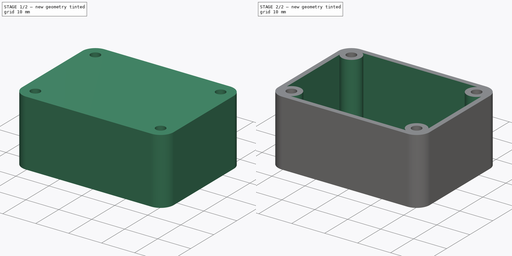
[diagram: build sequence overview — one tinted view per stage of 2, left to right]
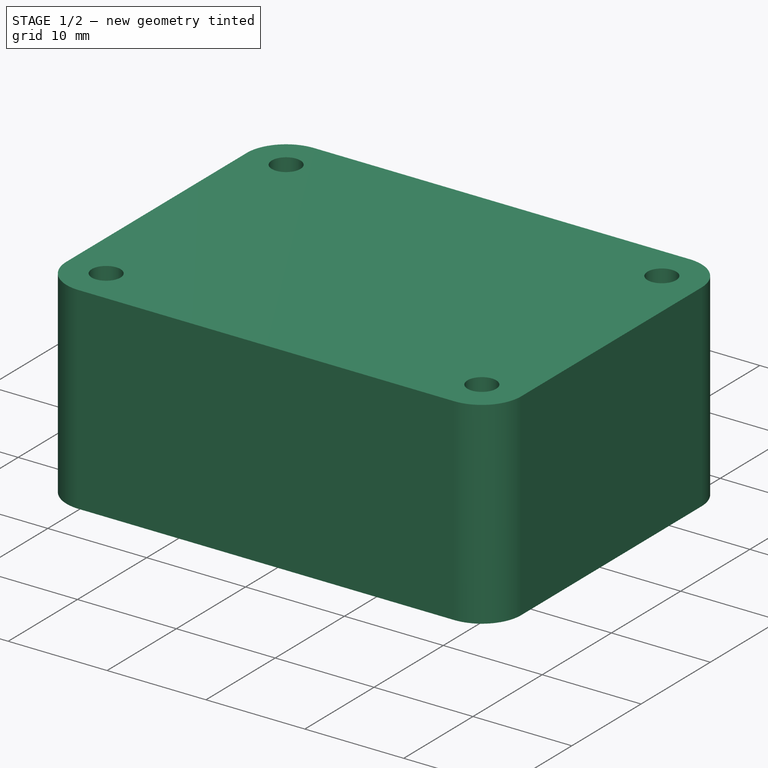
[diagram: stage 1 of 2 — iso view after this stage's code; geometry added in this stage tinted green]
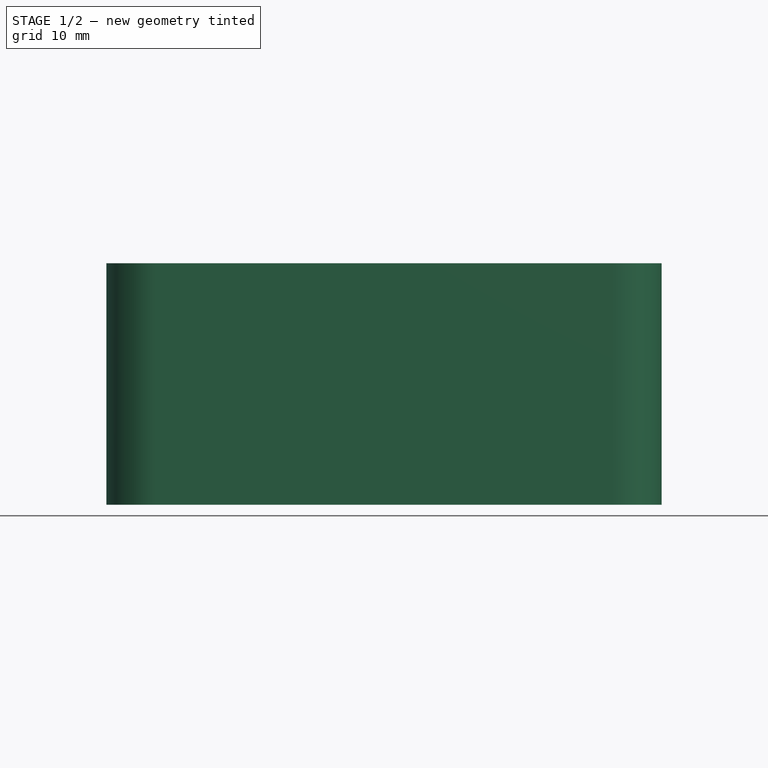
[diagram: stage 1 of 2 — front view after this stage's code; geometry added in this stage tinted green]
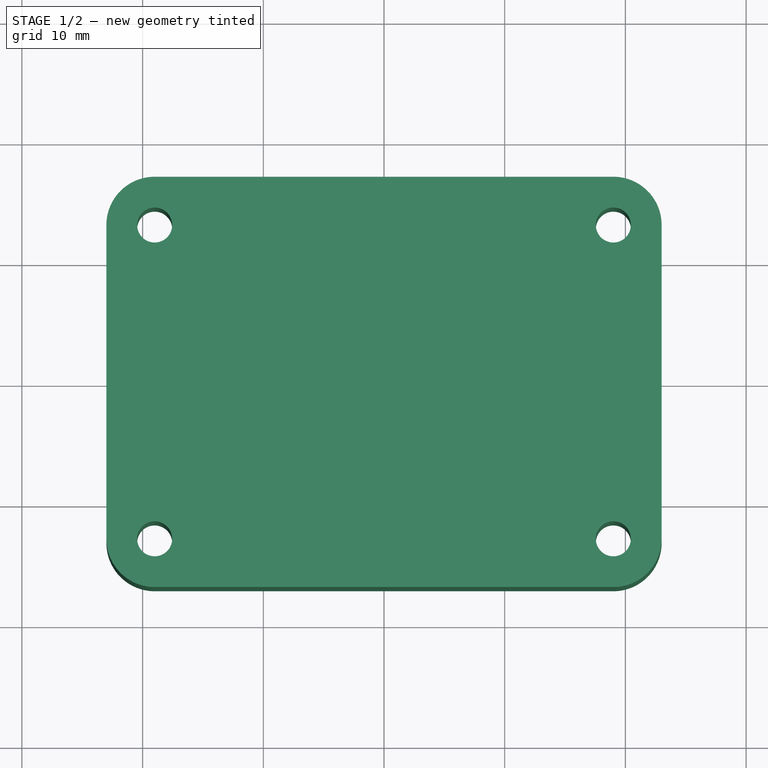
[diagram: stage 1 of 2 — top view after this stage's code; geometry added in this stage tinted green]
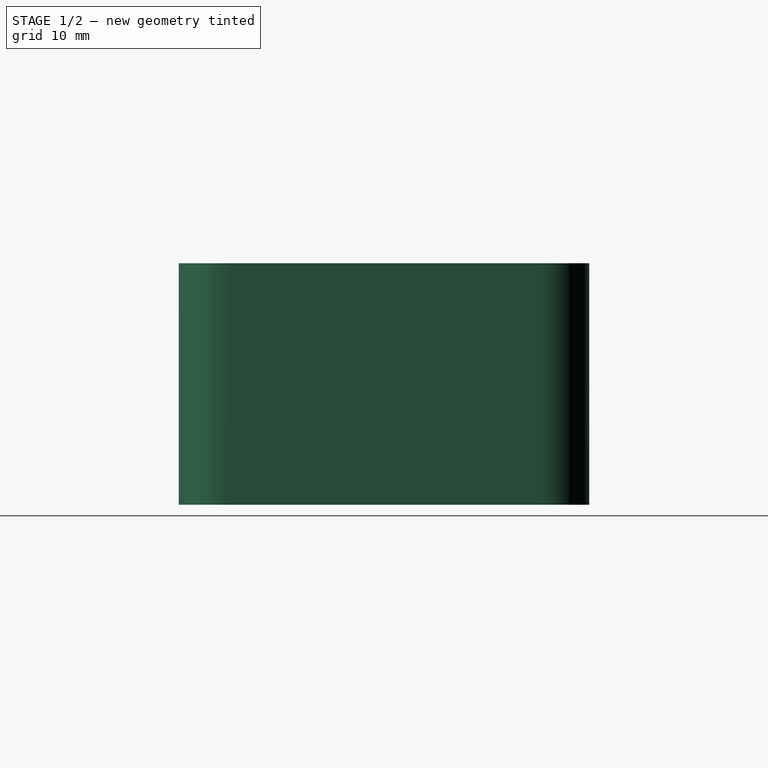
[diagram: stage 1 of 2 — right view after this stage's code; geometry added in this stage tinted green]
FCSTD DOCUMENT  (FreeCAD 0.20R29603 (Git))
Label: Case-Fan-Controller
License: All rights reserved
LicenseURL: http://en.wikipedia.org/wiki/All_rights_reserved
objects: Sketcher::SketchObject×1, PartDesign::Pad×1, PartDesign::Thickness×1, PartDesign::Body×1
note: 6 computed .brp shape members not serialized (recipe doc carries the construction recipe); baked Part::Feature solids carry a one-line shape summary decoded from their .brp

FEATURE [Sketcher::SketchObject] Sketch
  FullyConstrained = true
  MapMode = 5
  Support = -> [XY_Plane]
  sketch-geometry (18):
    g0: LineSegment StartX=-19 StartY=17 StartZ=0 EndX=19 EndY=17 EndZ=0
    g1: LineSegment StartX=23 StartY=13 StartZ=0 EndX=23 EndY=-13 EndZ=0
    g2: LineSegment StartX=19 StartY=-17 StartZ=0 EndX=-19 EndY=-17 EndZ=0
    g3: LineSegment StartX=-23 StartY=-13 StartZ=0 EndX=-23 EndY=13 EndZ=0
    g4: Circle CenterX=-19 CenterY=13 CenterZ=0 NormalX=0 NormalY=0 NormalZ=1 AngleXU=0 Radius=1.45
    g5: Circle CenterX=19 CenterY=13 CenterZ=0 NormalX=0 NormalY=0 NormalZ=1 AngleXU=0 Radius=1.45
    g6: LineSegment StartX=-23 StartY=13 StartZ=0 EndX=-20.45 EndY=13 EndZ=0
    g7: LineSegment StartX=-19 StartY=14.45 StartZ=0 EndX=-19 EndY=17 EndZ=0
    g8: Circle CenterX=-19 CenterY=-13 CenterZ=0 NormalX=0 NormalY=0 NormalZ=1 AngleXU=0 Radius=1.45
    g9: Circle CenterX=19 CenterY=-13 CenterZ=0 NormalX=0 NormalY=0 NormalZ=1 AngleXU=0 Radius=1.45
    g10: ArcOfCircle CenterX=-19 CenterY=13 CenterZ=0 NormalX=0 NormalY=0 NormalZ=1 AngleXU=0 Radius=4 StartAngle=1.5708 EndAngle=3.14159
    g11: GeomPoint X=-23 Y=17 Z=0
    g12: ArcOfCircle CenterX=19 CenterY=13 CenterZ=0 NormalX=0 NormalY=0 NormalZ=1 AngleXU=0 Radius=4 StartAngle=-1.8e-15 EndAngle=1.5708
    g13: GeomPoint X=23 Y=17 Z=0
    g14: ArcOfCircle CenterX=19 CenterY=-13 CenterZ=0 NormalX=0 NormalY=0 NormalZ=1 AngleXU=0 Radius=4 StartAngle=4.71239 EndAngle=6.28319
    g15: GeomPoint X=23 Y=-17 Z=0
    g16: ArcOfCircle CenterX=-19 CenterY=-13 CenterZ=0 NormalX=0 NormalY=0 NormalZ=1 AngleXU=0 Radius=4 StartAngle=3.14159 EndAngle=4.71239
    g17: GeomPoint X=-23 Y=-17 Z=0
  constraints (44):
    c: Horizontal(g2)
    c: Vertical(g3)
    c: Symmetric(g11,g13,g-2)
    c: Symmetric(g13,g15,g-1)
    c: DistanceX(g11,g13) = 46
    c: DistanceY(g15,g13) = 34
    c: Equal(g4,g5)
    c: Diameter(g4) = 2.9
    c: Symmetric(g4,g5,g-2)
    c: DistanceX(g4,g5) = 38
    c: PointOnObject(g6,g3)
    c: PointOnObject(g6,g4)
    c: Horizontal(g6)
    c: Perpendicular(g4,g6)
    c: PointOnObject(g7,g4)
    c: PointOnObject(g7,g0)
    c: Vertical(g7)
    c: Perpendicular(g4,g7)
    c: Equal(g7,g6)
    c: Horizontal(g8,g9)
    c: Vertical(g8,g4)
    c: Symmetric(g5,g9,g-1)
    c: Equal(g8,g9)
    c: Equal(g9,g5)
    c: PointOnObject(g11,g0)
    c: PointOnObject(g11,g3)
    c: Tangent(g0,g10) = 1.5708
    c: Tangent(g3,g10) = 1.5708
    c: PointOnObject(g13,g0)
    c: PointOnObject(g13,g1)
    c: Tangent(g0,g12) = 1.5708
    c: Tangent(g1,g12) = 1.5708
    c: PointOnObject(g15,g1)
    c: PointOnObject(g15,g2)
    c: Tangent(g1,g14) = 1.5708
    c: Tangent(g2,g14) = 1.5708
    c: PointOnObject(g17,g2)
    c: PointOnObject(g17,g3)
    c: Tangent(g2,g16) = 1.5708
    c: Tangent(g3,g16) = 1.5708
    c: Equal(g16,g10)
    c: Equal(g10,g12)
    c: Equal(g12,g14)
    c: Radius(g16) = 4
FEATURE [PartDesign::Pad] Pad
  Direction = (0,0,1)
  Length = 20
  Length2 = 10
  Profile = -> Sketch
  ReferenceAxis = -> Sketch [N_Axis]
  Type = 0
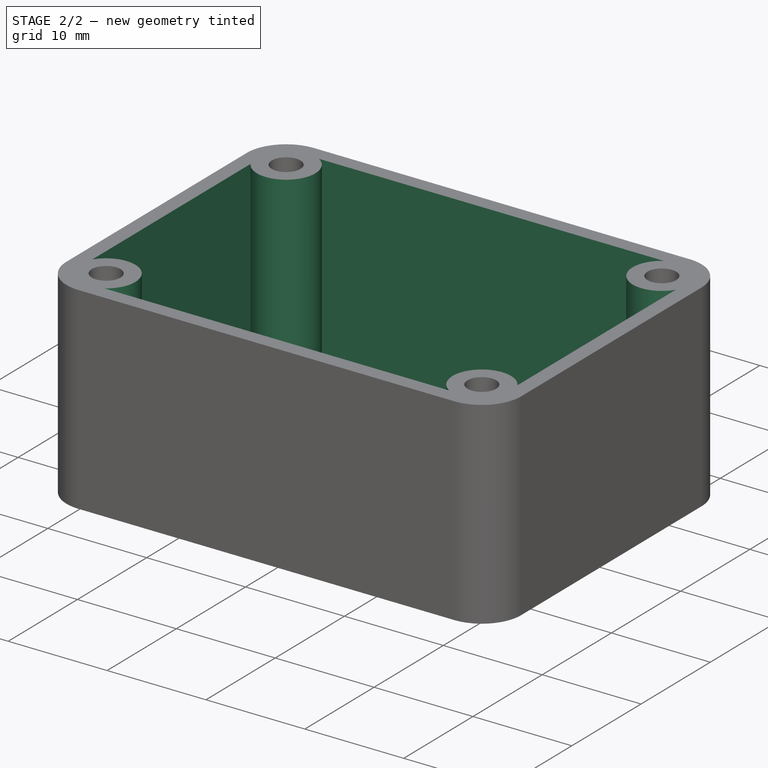
[diagram: stage 2 of 2 — iso view after this stage's code; geometry added in this stage tinted green]
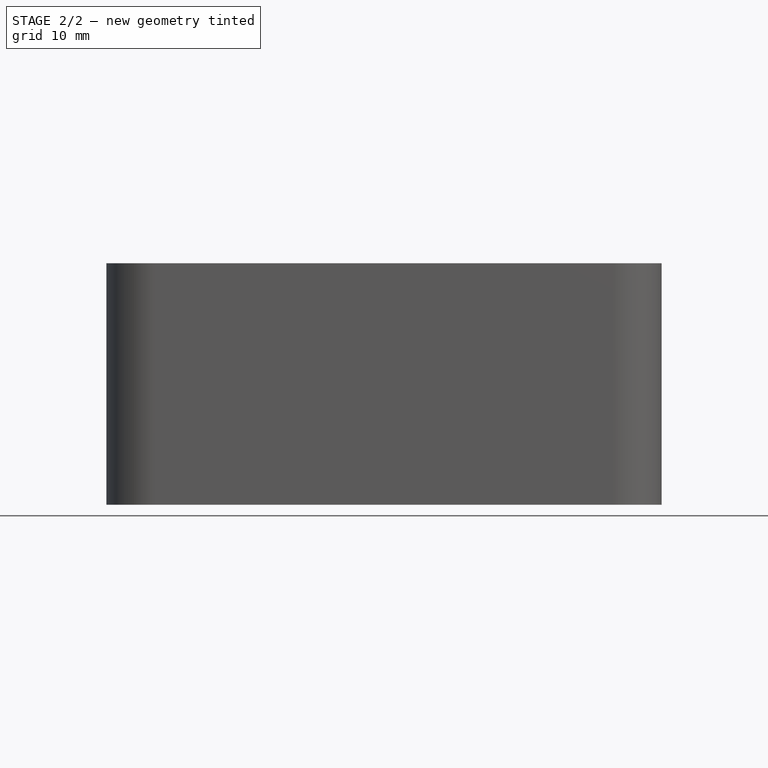
[diagram: stage 2 of 2 — front view after this stage's code; geometry added in this stage tinted green]
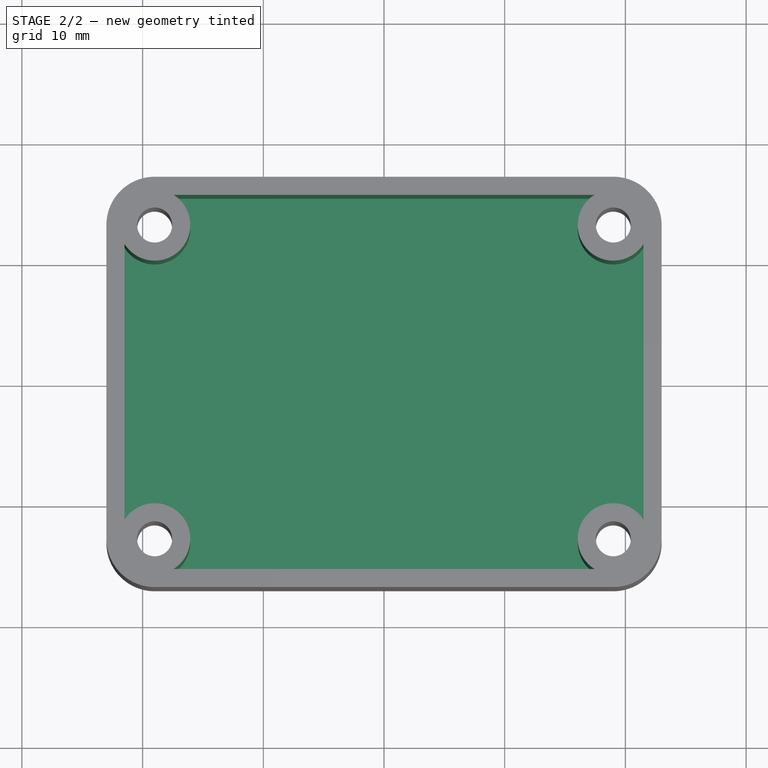
[diagram: stage 2 of 2 — top view after this stage's code; geometry added in this stage tinted green]
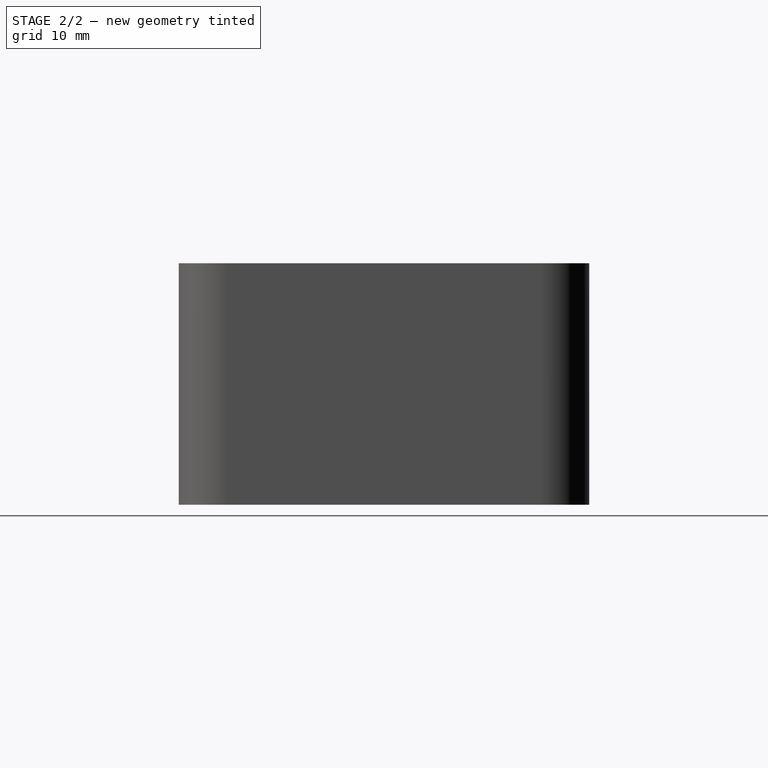
[diagram: stage 2 of 2 — right view after this stage's code; geometry added in this stage tinted green]
FEATURE [PartDesign::Thickness] Thickness
  Base = -> Pad [Face14]
  BaseFeature = -> Pad
  Intersection = true
  Join = 0
  Mode = 1
  Reversed = true
  SupportTransform = false
  Value = 1.5
FEATURE [PartDesign::Body] Body
  Group = -> [Sketch,Pad,Thickness]
  Origin = -> Origin
  Tip = -> Thickness
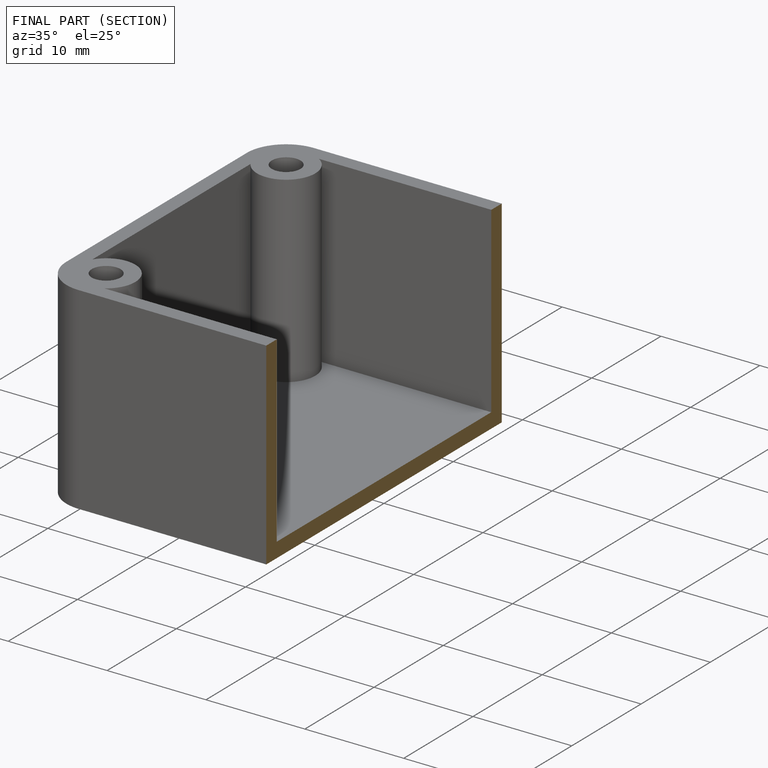
[diagram: finished part — half-section view (interior)]
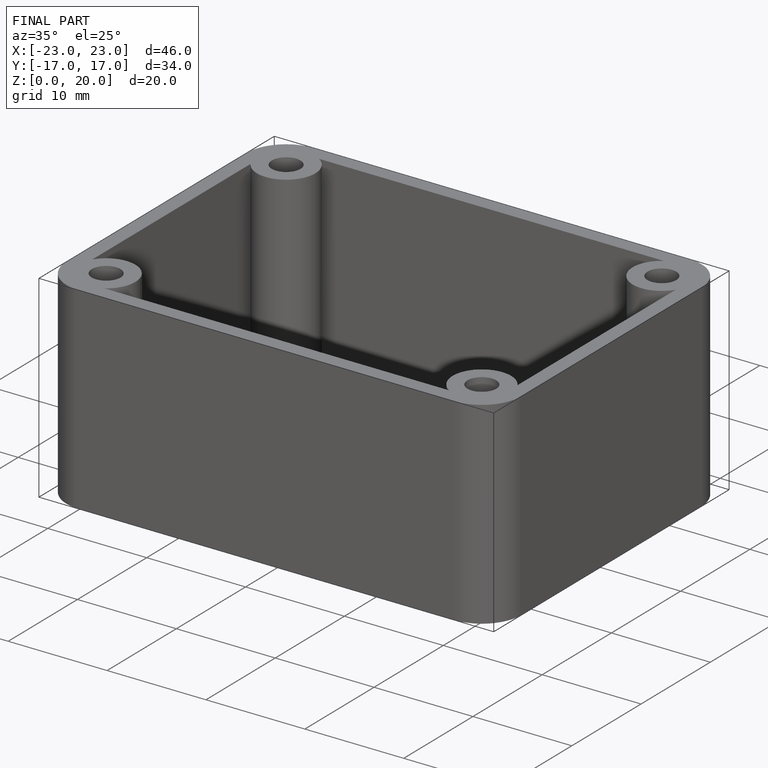
[diagram: finished part — iso view with bounding-box wireframe]
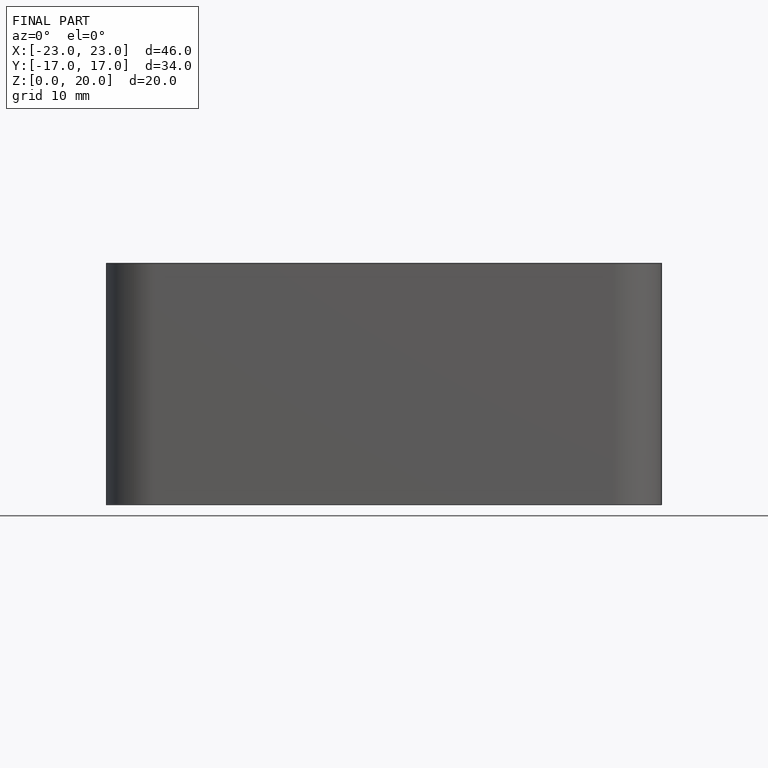
[diagram: finished part — front view with bounding-box wireframe]
